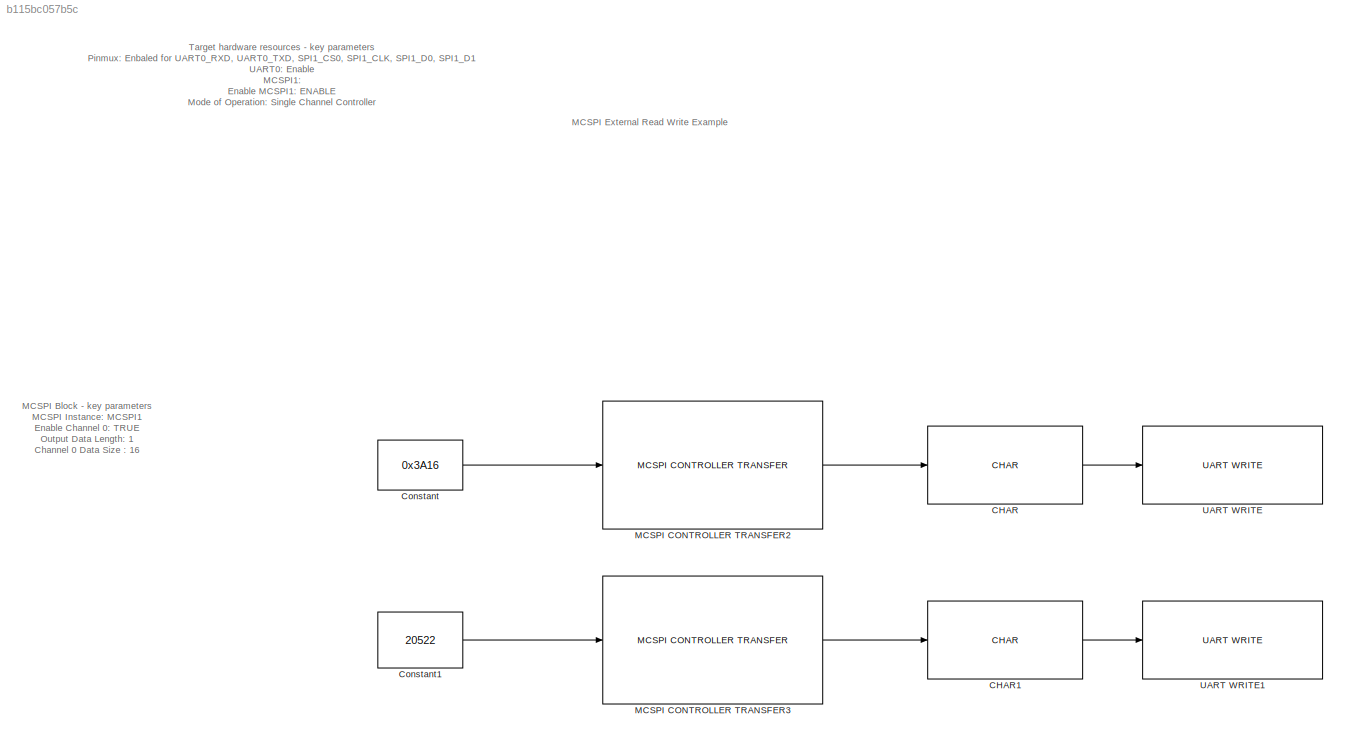
MODEL slx_b115bc057b5c
KIND model
CONFIG AbsTol = auto
CONFIG EnableMultiTasking = off
CONFIG FixedStep = auto
CONFIG MaxStep = auto
CONFIG MinStep = auto
CONFIG RelTol = 1e-3
CONFIG SampleTimeConstraint = Unconstrained
CONFIG SolverName = FixedStepAuto
CONFIG StartTime = 0.0
CONFIG StopTime = 10.0
BLOCK [Reference] CHAR  REF=peripheral_library_blocks_am263x/CHAR
  SourceBlock = peripheral_library_blocks_am263x/CHAR
  SourceType = CHAR
BLOCK [Reference] CHAR1  REF=peripheral_library_blocks_am263x/CHAR
  SourceBlock = peripheral_library_blocks_am263x/CHAR
  SourceType = CHAR
BLOCK [Constant] Constant
  OutDataTypeStr = uint16
  SampleTime = -1
  Value = 0x3A16
BLOCK [Constant] Constant1
  OutDataTypeStr = uint16
  SampleTime = -1
  Value = 20522
BLOCK [Reference] MCSPI CONTROLLER TRANSFER2  REF=peripheral_library_blocks_am263x/MCSPI CONTROLLER TRANSFER
  SourceBlock = peripheral_library_blocks_am263x/MCSPI CONTROLLER TRANSFER
  SourceType = MCSPI_CONTROLLER_TRANSFER_AM263X
BLOCK [Reference] MCSPI CONTROLLER TRANSFER3  REF=peripheral_library_blocks_am263x/MCSPI CONTROLLER TRANSFER
  SourceBlock = peripheral_library_blocks_am263x/MCSPI CONTROLLER TRANSFER
  SourceType = MCSPI_CONTROLLER_TRANSFER_AM263X
BLOCK [Reference] UART WRITE  REF=peripheral_library_blocks_am263x/UART WRITE
  SourceBlock = peripheral_library_blocks_am263x/UART WRITE
  SourceType = UART_WRITE_AM263X
BLOCK [Reference] UART WRITE1  REF=peripheral_library_blocks_am263x/UART WRITE
  SourceBlock = peripheral_library_blocks_am263x/UART WRITE
  SourceType = UART_WRITE_AM263X
ANNOTATION (root): MCSPI External Read Write Example
ANNOTATION (root): MCSPI Block - key parameters MCSPI Instance: MCSPI1 Enable Channel 0: TRUE Output Data Length: 1 Channel 0 Data Size : 16
ANNOTATION (root): Target hardware resources - key parameters Pinmux: Enbaled for UART0_RXD, UART0_TXD, SPI1_CS0, SPI1_CLK, SPI1_D0, SPI1_D1 UART0: Enable MCSPI1: Enable MCSPI1: ENABLE Mode of Operation: Single Channel Controller Pin Mode: 4 Pin Mode TR Mode: Transmit and Receive only Input Select: D1 D0 TX Enable: Enable Transfer Mode: Polled Enable MCSPI1 Channel 0: ENABLE
LINE CHAR1:1 -> UART WRITE1:1
LINE CHAR:1 -> UART WRITE:1
LINE Constant1:1 -> MCSPI CONTROLLER TRANSFER3:1
LINE Constant:1 -> MCSPI CONTROLLER TRANSFER2:1
LINE MCSPI CONTROLLER TRANSFER2:1 -> CHAR:1
LINE MCSPI CONTROLLER TRANSFER3:1 -> CHAR1:1
